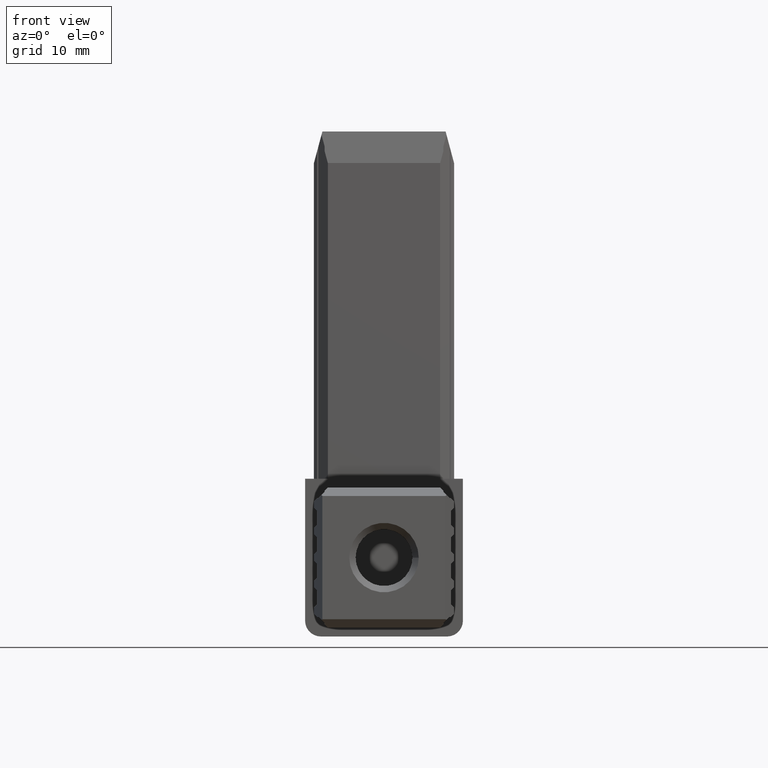
[diagram: clean part render]
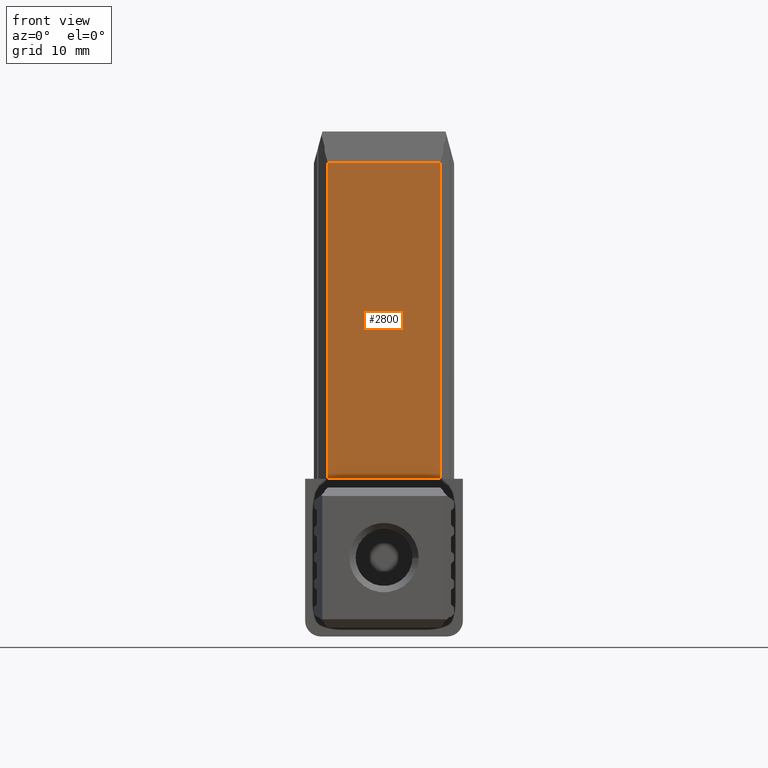
[diagram: same view with one face highlighted and labeled with its STEP entity id]
A machine part, front view. The second image highlights one B-rep face of the part: STEP entity #2800.
In plain terms, the highlighted planar face has unit normal (-0, -1, 0).
Its self-contained STEP definition (entity closure, byte-faithful):
#133=PLANE('',#2977);
#281=FACE_OUTER_BOUND('',#426,.T.);
#426=EDGE_LOOP('',(#2603,#2604,#2605,#2606));
#541=LINE('',#3925,#922);
#674=LINE('',#4189,#1055);
#811=LINE('',#4461,#1192);
#812=LINE('',#4463,#1193);
#922=VECTOR('',#3164,10.);
#1055=VECTOR('',#3359,10.);
#1192=VECTOR('',#3642,10.);
#1193=VECTOR('',#3645,10.);
#1320=VERTEX_POINT('',#3922);
#1321=VERTEX_POINT('',#3924);
#1420=VERTEX_POINT('',#4186);
#1421=VERTEX_POINT('',#4188);
#1597=EDGE_CURVE('',#1320,#1321,#541,.T.);
#1730=EDGE_CURVE('',#1420,#1421,#674,.T.);
#1867=EDGE_CURVE('',#1320,#1421,#811,.T.);
#1868=EDGE_CURVE('',#1321,#1420,#812,.T.);
#2603=ORIENTED_EDGE('',*,*,#1730,.F.);
#2604=ORIENTED_EDGE('',*,*,#1868,.F.);
#2605=ORIENTED_EDGE('',*,*,#1597,.F.);
#2606=ORIENTED_EDGE('',*,*,#1867,.T.);
#2800=ADVANCED_FACE('',(#281),#133,.T.);
#2977=AXIS2_PLACEMENT_3D('',#4462,#3643,#3644);
#3164=DIRECTION('',(-1.,1.9959065611239E-15,0.));
#3359=DIRECTION('',(1.,-1.9959065611239E-15,0.));
#3642=DIRECTION('',(0.,0.,1.));
#3643=DIRECTION('center_axis',(-1.9959065611239E-15,-1.,0.));
#3644=DIRECTION('ref_axis',(1.,-1.9959065611239E-15,0.));
#3645=DIRECTION('',(0.,0.,1.));
#3922=CARTESIAN_POINT('',(8.89999999999989,-11.1,12.5));
#3924=CARTESIAN_POINT('',(-8.89999999999989,-11.1,12.5));
#3925=CARTESIAN_POINT('',(-4.44999999999996,-11.1,12.5));
#4186=CARTESIAN_POINT('',(-8.89999999999989,-11.1,62.5));
#4188=CARTESIAN_POINT('',(8.89999999999989,-11.1,62.5));
#4189=CARTESIAN_POINT('',(-4.44999999999995,-11.1,62.5));
#4461=CARTESIAN_POINT('',(8.89999999999989,-11.1,12.5));
#4462=CARTESIAN_POINT('Origin',(-8.89999999999989,-11.1,12.5));
#4463=CARTESIAN_POINT('',(-8.89999999999989,-11.1,12.5));